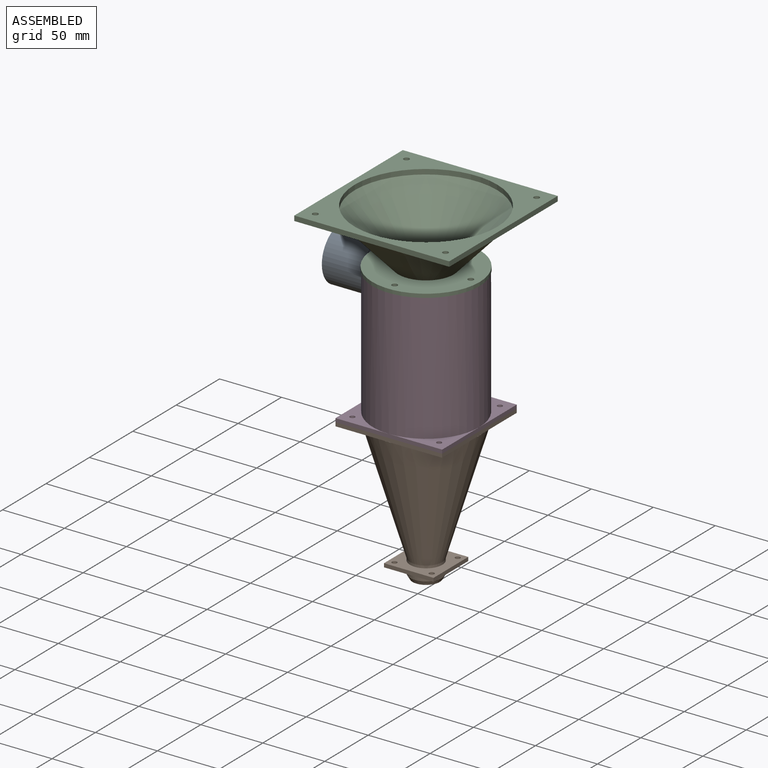
[diagram: assembled view]
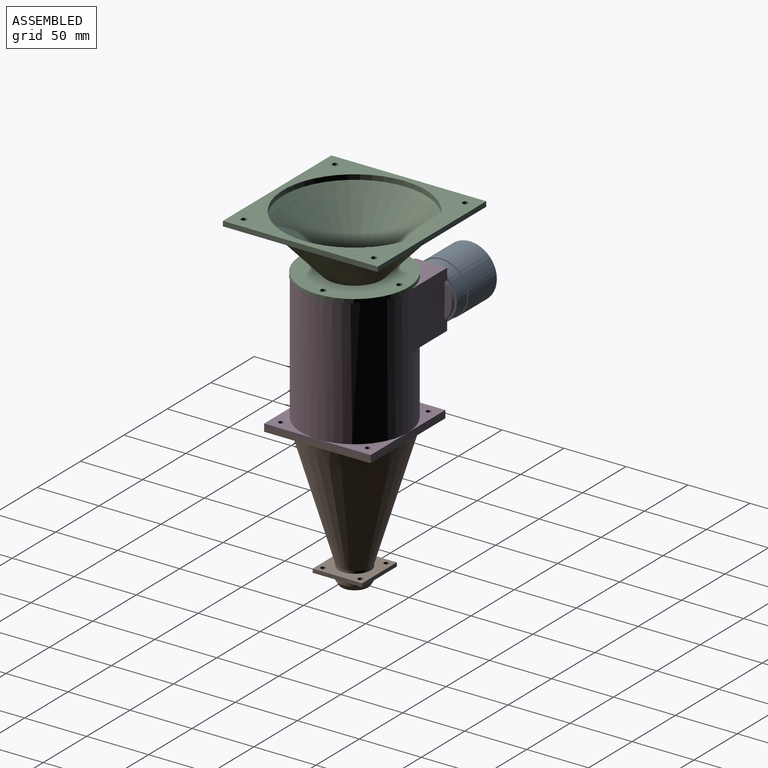
[diagram: assembled view, second angle]
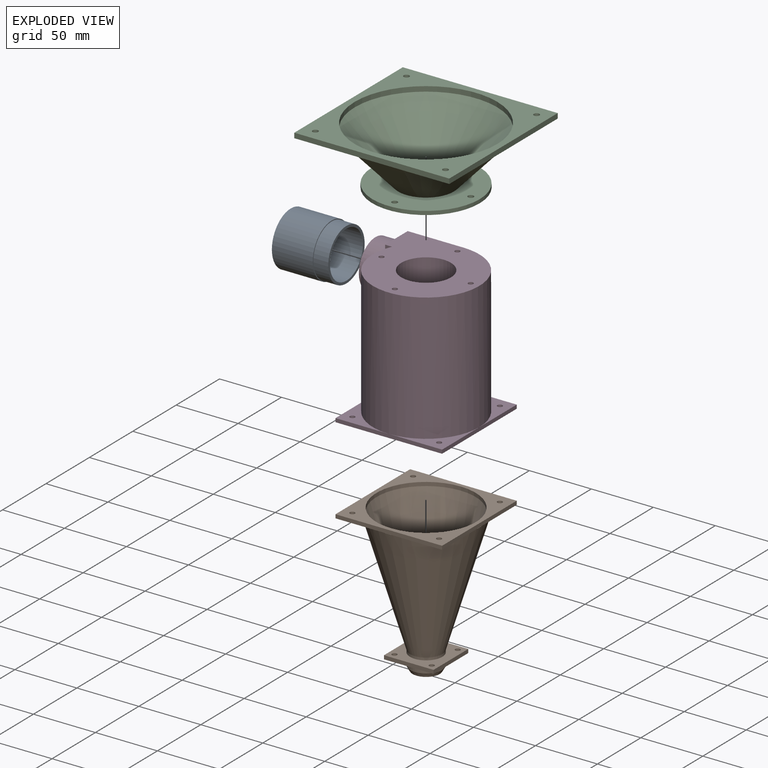
[diagram: exploded view]
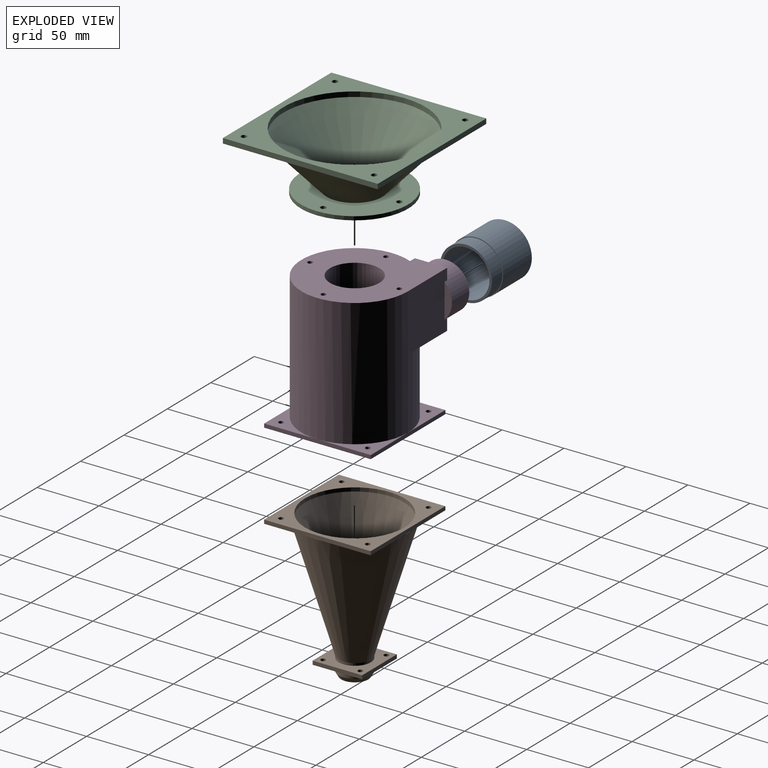
[diagram: exploded view, second angle]
ASSEMBLY  parts=4 mates=5
PART A: 8 faces, bbox 43.3x45x43.3 mm
  f0: plane 39.3x39.3mm, normal (0,1,0), area 78.9mm2, adj f2,f4
  f1: cylinder r=21mm len=42mm, axis (0,1,0), area 1583.4mm2, adj f3,f7
  f2: cylinder r=19mm len=38mm, axis (0,1,0), area 2029.5mm2, adj f0,f3
  f3: plane 42x42mm, normal (0,-1,0), area 251.3mm2, adj f1,f2
  f4: cylinder r=19.65mm len=39.3mm, axis (0,-1,0), area 3457mm2, adj f0,f6
  f5: cylinder r=21.65mm len=43.3mm, axis (0,-1,0), area 4489mm2, adj f6,f7
  f6: plane 43.3x43.3mm, normal (0,1,0), area 259.5mm2, adj f4,f5
  f7: plane 43.3x43.3mm, normal (0,-1,0), area 87.1mm2, adj f1,f5
PART B: 35 faces, bbox 86.3x86.3x118.4 mm
  f0: cylinder r=13mm len=26mm, axis (0,0,1), area 163.4mm2, adj f8,f28
  f1: plane 6.75x0.13mm, normal (0,0,1), area 0.6mm2, adj f8,f15
  f2: plane 6.75x0.13mm, normal (0,0,1), area 0.6mm2, adj f8,f18
  f3: plane 6.75x0.13mm, normal (0,0,1), area 0.6mm2, adj f8,f17
  f4: plane 22x22mm, normal (0,0,-1), area 66mm2, adj f5,f34
  f5: cylinder r=10mm len=20mm, axis (0,0,1), area 970.1mm2, adj f4,f6
  f6: cone r=10mm half-angle=16.7deg, axis (0,0,1), area 16399.6mm2, adj f5,f23
  f7: plane 6.75x0.13mm, normal (0,0,1), area 0.6mm2, adj f8,f16
  f8: cone r=43.13mm half-angle=16.7deg, axis (0,0,1), area 18491.9mm2, adj f0,f1,f2,f3,f7,f10,f11,f12
  f9: cylinder r=13mm len=26mm, axis (0,0,1), area 533.9mm2, adj f29,f34
  f10: plane 39.63x39.63mm, normal (0,0,-1), area 375.9mm2, adj f8,f16,f17,f21
  f11: plane 39.63x39.63mm, normal (0,0,-1), area 375.9mm2, adj f8,f17,f18,f20
  f12: plane 39.63x39.63mm, normal (0,0,-1), area 375.9mm2, adj f8,f15,f18,f19
  f13: plane 39.63x39.63mm, normal (0,0,-1), area 375.9mm2, adj f8,f15,f16,f22
  f14: plane 86x86mm, normal (0,0,1), area 2319.2mm2, adj f15,f16,f17,f18,f19,f20,f21,f22
  f15: plane 86x3mm, normal (-1,0,0), area 258mm2, adj f1,f12,f13,f14,f16,f18
  f16: plane 86x3mm, normal (0,-1,0), area 258mm2, adj f7,f10,f13,f14,f15,f17
  f17: plane 86x3mm, normal (1,0,0), area 258mm2, adj f3,f10,f11,f14,f16,f18
  f18: plane 86x3mm, normal (0,1,0), area 258mm2, adj f2,f11,f12,f14,f15,f17
  f19: cylinder r=2mm len=4mm, axis (0,0,-1), area 37.7mm2, adj f12,f14
  f20: cylinder r=2mm len=4mm, axis (0,0,-1), area 37.7mm2, adj f11,f14
  f21: cylinder r=2mm len=4mm, axis (0,0,-1), area 37.7mm2, adj f10,f14
  f22: cylinder r=2mm len=4mm, axis (0,0,-1), area 37.7mm2, adj f13,f14
  f23: cylinder r=40mm len=80mm, axis (0,0,-1), area 754mm2, adj f6,f14
  f24: plane 40x3mm, normal (-1,0,0), area 120mm2, adj f25,f27,f28,f29
  f25: plane 40x3mm, normal (0,-1,0), area 120mm2, adj f24,f26,f28,f29
  f26: plane 40x3mm, normal (1,0,0), area 120mm2, adj f25,f27,f28,f29
  f27: plane 40x3mm, normal (0,1,0), area 120mm2, adj f24,f26,f28,f29
  f28: plane 40x40mm, normal (0,0,1), area 1018.8mm2, adj f0,f24,f25,f26,f27,f30,f31,f32
  f29: plane 40x40mm, normal (0,0,-1), area 1018.8mm2, adj f9,f24,f25,f26,f27,f30,f31,f32
  f30: cylinder r=2mm len=4mm, axis (0,0,-1), area 37.7mm2, adj f28,f29
  f31: cylinder r=2mm len=4mm, axis (0,0,-1), area 37.7mm2, adj f28,f29
  f32: cylinder r=2mm len=4mm, axis (0,0,-1), area 37.7mm2, adj f28,f29
  f33: cylinder r=2mm len=4mm, axis (0,0,-1), area 37.7mm2, adj f28,f29
  f34: cone r=13mm half-angle=30deg, axis (0,0,1), area 301.6mm2, adj f4,f9
PART C: 21 faces, bbox 125x125x47 mm
  f0: cylinder r=20mm len=40mm, axis (0,0,-1), area 377mm2, adj f3,f20
  f1: cylinder r=43.35mm len=86.71mm, axis (0,0,-1), area 817.2mm2, adj f2,f3
  f2: plane 86.71x86.71mm, normal (0,0,1), area 4251.1mm2, adj f1,f4,f5,f6,f7,f19
  f3: plane 86.71x86.71mm, normal (0,0,-1), area 4584.9mm2, adj f0,f1,f4,f5,f6,f7
  f4: cylinder r=2.25mm len=4.5mm, axis (0,0,-1), area 42.4mm2, adj f2,f3
  f5: cylinder r=2.25mm len=4.5mm, axis (0,0,-1), area 42.4mm2, adj f2,f3
  f6: cylinder r=2.25mm len=4.5mm, axis (0,0,-1), area 42.4mm2, adj f2,f3
  f7: cylinder r=2.25mm len=4.5mm, axis (0,0,-1), area 42.4mm2, adj f2,f3
  f8: plane 125x4mm, normal (1,0,0), area 500mm2, adj f9,f11,f13,f14
  f9: plane 125x4mm, normal (0,1,0), area 500mm2, adj f8,f10,f13,f14
  f10: plane 125x4mm, normal (-1,0,0), area 500mm2, adj f9,f11,f13,f14
  f11: plane 125x4mm, normal (0,-1,0), area 500mm2, adj f8,f10,f13,f14
  f12: cylinder r=57.5mm len=115mm, axis (0,0,-1), area 1445.1mm2, adj f13,f20
  f13: plane 125x125mm, normal (0,0,1), area 5174.5mm2, adj f8,f9,f10,f11,f12,f15,f16,f17
  f14: plane 125x125mm, normal (0,0,-1), area 4251.6mm2, adj f8,f9,f10,f11,f15,f16,f17,f18
  f15: cylinder r=2.25mm len=4.5mm, axis (0,0,-1), area 56.5mm2, adj f13,f14
  f16: cylinder r=2.25mm len=4.5mm, axis (0,0,-1), area 56.5mm2, adj f13,f14
  f17: cylinder r=2.25mm len=4.5mm, axis (0,0,-1), area 56.5mm2, adj f13,f14
  f18: cylinder r=2.25mm len=4.5mm, axis (0,0,-1), area 56.5mm2, adj f13,f14
  f19: cone r=60mm half-angle=43.2deg, axis (0,0,1), area 14210.7mm2, adj f2,f14
  f20: cone r=57.5mm half-angle=43.2deg, axis (0,0,1), area 13349.5mm2, adj f0,f12
PART D: 46 faces, bbox 105x92x106 mm
  f0: cylinder r=16mm len=32mm, axis (-1,0,0), area 1863.6mm2, adj f1,f36,f38,f42,f43,f44,f45
  f1: plane 20x7.51mm, normal (1,0,0), area 102.3mm2, adj f0,f6,f29,f31
  f2: cylinder r=19mm len=38mm, axis (1,0,0), area 2215.8mm2, adj f24,f26,f37,f38,f39,f40,f41
  f3: plane 43x23.59mm, normal (0.7,-0.72,0), area 270.7mm2, adj f5,f6,f27,f28,f29,f30
  f4: cylinder r=23mm len=80mm, axis (0,0,1), area 11561.1mm2, adj f6,f7
  f5: cylinder r=40mm len=103mm, axis (0,0,1), area 23940mm2, adj f3,f6,f14,f27,f28,f31
  f6: plane 82x80mm, normal (0,0,-1), area 3622.8mm2, adj f1,f3,f4,f5,f28,f29,f31,f32
  f7: plane 46x46mm, normal (0,0,-1), area 405.3mm2, adj f4,f8
  f8: cylinder r=20mm len=83mm, axis (0,0,1), area 10430.1mm2, adj f7,f9
  f9: plane 88x86mm, normal (0,0,1), area 4931.2mm2, adj f8,f10,f24,f26,f32,f33,f34,f35
  f10: cylinder r=43mm len=103mm, axis (0,0,1), area 25525.1mm2, adj f9,f11,f12,f13,f15,f24,f25,f26
  f11: plane 43x43mm, normal (0,0,1), area 384.2mm2, adj f10,f18,f19,f21
  f12: plane 43x43mm, normal (0,0,1), area 384.2mm2, adj f10,f17,f18,f22
  f13: plane 43x43mm, normal (0,0,1), area 384.2mm2, adj f10,f16,f17,f23
  f14: plane 86x86mm, normal (0,0,-1), area 2319.2mm2, adj f5,f16,f17,f18,f19,f20,f21,f22
  f15: plane 43x43mm, normal (0,0,1), area 384.2mm2, adj f10,f16,f19,f20
  f16: plane 86x3mm, normal (-1,0,0), area 258mm2, adj f13,f14,f15,f17,f19
  f17: plane 86x3mm, normal (0,1,0), area 258mm2, adj f12,f13,f14,f16,f18
  f18: plane 86x3mm, normal (1,0,0), area 258mm2, adj f11,f12,f14,f17,f19
  f19: plane 86x3mm, normal (0,-1,0), area 258mm2, adj f11,f14,f15,f16,f18
  f20: cylinder r=2mm len=4mm, axis (0,0,1), area 37.7mm2, adj f14,f15
  f21: cylinder r=2mm len=4mm, axis (0,0,1), area 37.7mm2, adj f11,f14
  f22: cylinder r=2mm len=4mm, axis (0,0,1), area 37.7mm2, adj f12,f14
  f23: cylinder r=2mm len=4mm, axis (0,0,1), area 37.7mm2, adj f13,f14
  f24: plane 46x5.5mm, normal (0,-1,0), area 170mm2, adj f2,f9,f10,f25,f37,f40,f41
  f25: plane 45x26mm, normal (0,0,-1), area 429.3mm2, adj f10,f24,f26,f41
  f26: plane 46x45mm, normal (0,1,0), area 1986.9mm2, adj f2,f9,f10,f25,f39,f40,f41
  f27: plane 36.21x23mm, normal (0,0,-1), area 326.4mm2, adj f3,f5,f28
  f28: plane 43x12.62mm, normal (0,-1,0), area 542.6mm2, adj f3,f5,f6,f27
  f29: plane 40x21.49mm, normal (0,1,0), area 859.5mm2, adj f1,f3,f6,f30,f36,f45
  f30: plane 42x20mm, normal (0,0,1), area 634.9mm2, adj f3,f29,f31,f36
  f31: plane 42x40mm, normal (0,-1,0), area 1680mm2, adj f1,f5,f6,f30,f36,f44
  f32: cylinder r=2mm len=4mm, axis (0,0,1), area 37.7mm2, adj f6,f9
  f33: cylinder r=2mm len=4mm, axis (0,0,1), area 37.7mm2, adj f6,f9
  f34: cylinder r=2mm len=4mm, axis (0,0,1), area 37.7mm2, adj f6,f9
  f35: cylinder r=2mm len=4mm, axis (0,0,1), area 37.7mm2, adj f6,f9
  f36: plane 20x7.51mm, normal (1,0,0), area 102.3mm2, adj f0,f29,f30,f31
  f37: plane 27.71x6mm, normal (1,0,0), area 114.9mm2, adj f2,f24
  f38: plane 38x38mm, normal (-1,0,0), area 329.9mm2, adj f0,f2
  f39: plane 27.71x6mm, normal (1,0,0), area 114.9mm2, adj f2,f26
  f40: plane 26x9.14mm, normal (-1,0,0), area 145.8mm2, adj f2,f9,f24,f26
  f41: plane 26x9.14mm, normal (-1,0,0), area 145.8mm2, adj f2,f24,f25,f26
  f42: plane 18.65x3mm, normal (-1,0,0), area 38.1mm2, adj f0,f44
  f43: plane 18.65x3mm, normal (-1,0,0), area 38.1mm2, adj f0,f45
  f44: plane 24.98x3mm, normal (-0.71,-0.71,0), area 93.8mm2, adj f0,f31,f42
  f45: plane 24.98x3mm, normal (-0.71,0.71,0), area 93.8mm2, adj f0,f29,f43
PLACE A rot(axis=(0.71,-0.71,0),180deg) t=(-27.9,-73.31,203.64)mm
PLACE B t=(29.1,-103.31,2.2)mm
PLACE C t=(29.1,-103.43,226.64)mm
PLACE D t=(29.1,-103.31,123.64)mm
MATE cylindrical B.f0 <-> D.f4  axis (0,0,-1) through (29.1,-103.31,119.14)mm
MATE fastened D.f4 <-> B.f0  axis (0,0,-1) through (29.1,-103.31,120.64)mm
MATE fastened C.f4 <-> D.f32  axis (0,0,-1) through (29.1,-67.31,226.64)mm
MATE fastened A.f5 <-> D.f0  axis (-1,0,0) through (-32.9,-73.31,203.64)mm
MATE slider A.f2 <-> D.f0  axis (-1,0,0) through (-15.9,-73.31,203.64)mm
